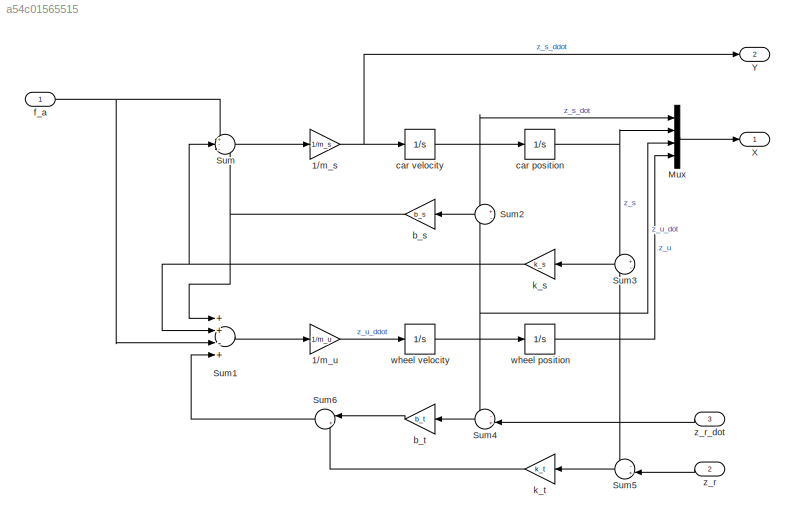
MODEL slx_a54c01565515
KIND model
CONFIG AbsTol = auto
CONFIG EnableMultiTasking = off
CONFIG FixedStep = STEP_SIZE
CONFIG MaxStep = auto
CONFIG MinStep = auto
CONFIG RelTol = 1e-3
CONFIG SampleTimeConstraint = Unconstrained
CONFIG Solver = ode4
CONFIG SolverName = ode4
CONFIG StartTime = 0.0
CONFIG StopTime = SIM_TIME
BLOCK [Gain] 1//m_s
  Gain = 1/m_s
  OutDataTypeStr = Inherit: Inherit via internal rule
  ParamDataTypeStr = Inherit: Inherit via internal rule
  SaturateOnIntegerOverflow = off
BLOCK [Gain] 1//m_u
  Gain = 1/m_u
  OutDataTypeStr = Inherit: Inherit via internal rule
  ParamDataTypeStr = Inherit: Inherit via internal rule
  SaturateOnIntegerOverflow = off
BLOCK [Mux] Mux
  DisplayOption = bar
  Ports = [4, 1]
BLOCK [Sum] Sum
  IconShape = round
  InputSameDT = off
  Inputs = +--
  OutDataTypeStr = Inherit: Inherit via internal rule
  Ports = [3, 1]
  SaturateOnIntegerOverflow = off
BLOCK [Sum] Sum1
  InputSameDT = off
  Inputs = ++-+
  OutDataTypeStr = Inherit: Inherit via internal rule
  Ports = [4, 1]
  SaturateOnIntegerOverflow = off
BLOCK [Sum] Sum2
  IconShape = round
  InputSameDT = off
  Inputs = +-
  OutDataTypeStr = Inherit: Inherit via internal rule
  Ports = [2, 1]
  SaturateOnIntegerOverflow = off
BLOCK [Sum] Sum3
  IconShape = round
  InputSameDT = off
  Inputs = +-
  OutDataTypeStr = Inherit: Inherit via internal rule
  Ports = [2, 1]
  SaturateOnIntegerOverflow = off
BLOCK [Sum] Sum4
  IconShape = round
  InputSameDT = off
  Inputs = -+|
  OutDataTypeStr = Inherit: Inherit via internal rule
  Ports = [2, 1]
  SaturateOnIntegerOverflow = off
BLOCK [Sum] Sum5
  IconShape = round
  InputSameDT = off
  Inputs = -+|
  OutDataTypeStr = Inherit: Inherit via internal rule
  Ports = [2, 1]
  SaturateOnIntegerOverflow = off
BLOCK [Sum] Sum6
  IconShape = round
  InputSameDT = off
  Inputs = |++
  OutDataTypeStr = Inherit: Inherit via internal rule
  Ports = [2, 1]
  SaturateOnIntegerOverflow = off
BLOCK [Outport] X
  IconDisplay = Port number
BLOCK [Outport] Y
  IconDisplay = Port number
  Port = 2
BLOCK [Gain] b_s
  Gain = b_s
  OutDataTypeStr = Inherit: Inherit via internal rule
  ParamDataTypeStr = Inherit: Inherit via internal rule
  SaturateOnIntegerOverflow = off
BLOCK [Gain] b_t
  Gain = b_t
  OutDataTypeStr = Inherit: Inherit via internal rule
  ParamDataTypeStr = Inherit: Inherit via internal rule
  SaturateOnIntegerOverflow = off
BLOCK [Integrator] car position
  Ports = [1, 1]
BLOCK [Integrator] car velocity
  Ports = [1, 1]
BLOCK [Inport] f_a
  IconDisplay = Port number
BLOCK [Gain] k_s
  Gain = k_s
  OutDataTypeStr = Inherit: Inherit via internal rule
  ParamDataTypeStr = Inherit: Inherit via internal rule
  SaturateOnIntegerOverflow = off
BLOCK [Gain] k_t
  Gain = k_t
  OutDataTypeStr = Inherit: Inherit via internal rule
  ParamDataTypeStr = Inherit: Inherit via internal rule
  SaturateOnIntegerOverflow = off
BLOCK [Integrator] wheel position
  Ports = [1, 1]
BLOCK [Integrator] wheel velocity
  Ports = [1, 1]
BLOCK [Inport] z_r
  IconDisplay = Port number
  Port = 2
BLOCK [Inport] z_r_dot
  IconDisplay = Port number
  Port = 3
NET 1//m_s:1 -> Y:1, car velocity:1
LINE 1//m_u:1 -> wheel velocity:1
LINE Mux:1 -> X:1
LINE Sum1:1 -> 1//m_u:1
LINE Sum2:1 -> b_s:1
LINE Sum3:1 -> k_s:1
LINE Sum4:1 -> b_t:1
LINE Sum5:1 -> k_t:1
LINE Sum6:1 -> Sum1:4
LINE Sum:1 -> 1//m_s:1
NET b_s:1 -> Sum1:1, Sum:3
LINE b_t:1 -> Sum6:1
NET car position:1 -> Mux:2, Sum3:1
NET car velocity:1 -> Mux:1, Sum2:1, car position:1
NET f_a:1 -> Sum1:3, Sum:1
NET k_s:1 -> Sum1:2, Sum:2
LINE k_t:1 -> Sum6:2
NET wheel position:1 -> Mux:4, Sum3:2, Sum5:1
NET wheel velocity:1 -> Mux:3, Sum2:2, Sum4:1, wheel position:1
LINE z_r:1 -> Sum5:2
LINE z_r_dot:1 -> Sum4:2
note: NET lines group one-source signal fan-out (src -> all destinations, sorted); 1:1 wires keep LINE
